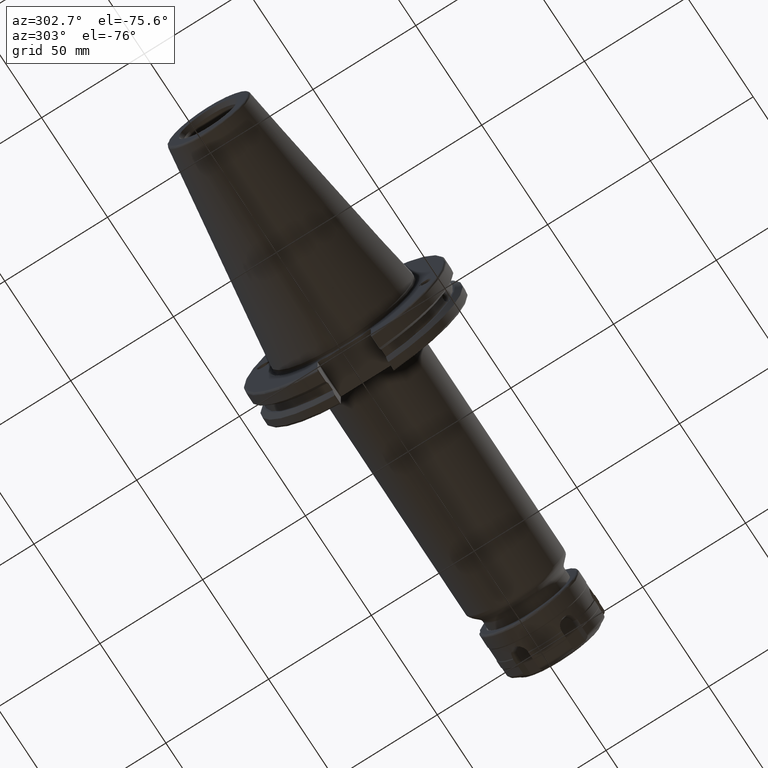
[diagram: clean part render]
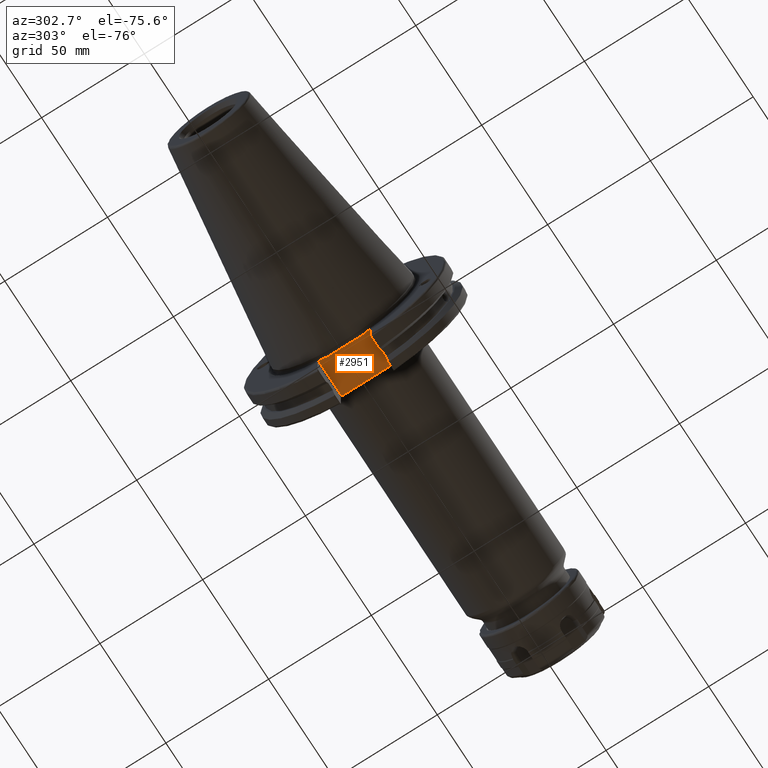
[diagram: same view with one face highlighted and labeled with its STEP entity id]
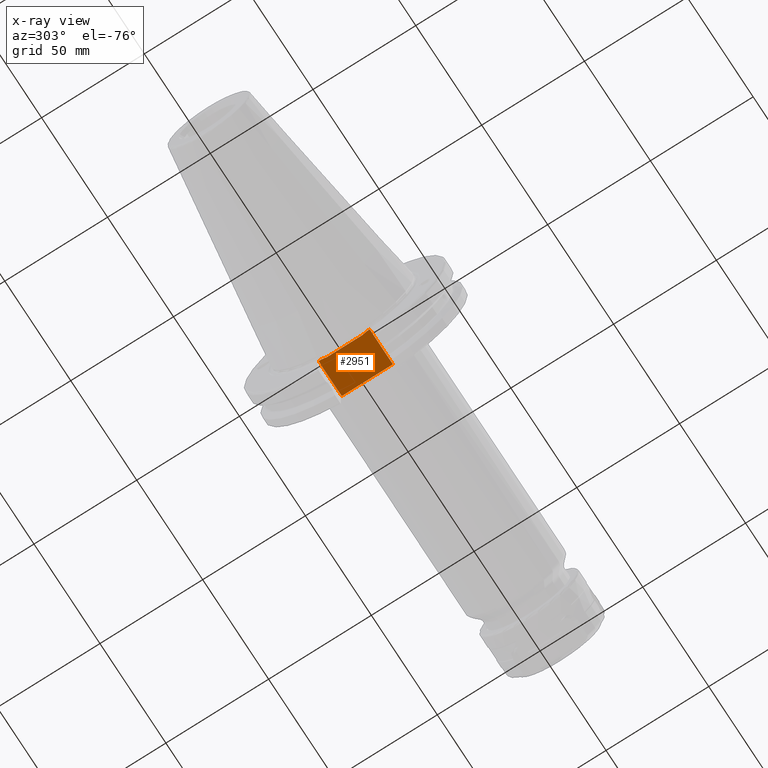
[diagram: x-ray of the same camera — body ghosted, the highlighted face saturated]
A machine part, auxiliary view. The second image highlights one B-rep face of the part: STEP entity #2951.
The next image is the same camera in x-ray: the body ghosted, the highlighted face saturated — about 0% of this face is hidden behind the body in this view.
In plain terms, the highlighted planar face has unit normal (0, 0, 1).
Its self-contained STEP definition (entity closure, byte-faithful):
#41=(
BOUNDED_CURVE()
B_SPLINE_CURVE(2,(#5212,#5213,#5214),.UNSPECIFIED.,.F.,.F.)
B_SPLINE_CURVE_WITH_KNOTS((3,3),(0.,0.263061266239573),.UNSPECIFIED.)
CURVE()
GEOMETRIC_REPRESENTATION_ITEM()
RATIONAL_B_SPLINE_CURVE((1.,1.00062951069793,1.))
REPRESENTATION_ITEM('')
);
#42=(
BOUNDED_CURVE()
B_SPLINE_CURVE(2,(#5217,#5218,#5219),.UNSPECIFIED.,.F.,.F.)
B_SPLINE_CURVE_WITH_KNOTS((3,3),(0.,0.263061266239573),.UNSPECIFIED.)
CURVE()
GEOMETRIC_REPRESENTATION_ITEM()
RATIONAL_B_SPLINE_CURVE((1.,1.00062951069793,1.))
REPRESENTATION_ITEM('')
);
#207=LINE('',#4408,#377);
#265=LINE('',#5184,#435);
#266=LINE('',#5188,#436);
#270=LINE('',#5208,#440);
#271=LINE('',#5210,#441);
#272=LINE('',#5216,#442);
#377=VECTOR('',#3562,10.);
#435=VECTOR('',#3786,10.);
#436=VECTOR('',#3789,10.);
#440=VECTOR('',#3815,10.);
#441=VECTOR('',#3818,10.);
#442=VECTOR('',#3819,10.);
#621=PLANE('',#3261);
#722=FACE_OUTER_BOUND('',#906,.T.);
#906=EDGE_LOOP('',(#2300,#2301,#2302,#2303,#2304,#2305,#2306,#2307));
#1221=VERTEX_POINT('',#4405);
#1222=VERTEX_POINT('',#4407);
#1330=VERTEX_POINT('',#5181);
#1331=VERTEX_POINT('',#5183);
#1332=VERTEX_POINT('',#5185);
#1333=VERTEX_POINT('',#5187);
#1339=VERTEX_POINT('',#5211);
#1340=VERTEX_POINT('',#5215);
#1535=EDGE_CURVE('',#1221,#1222,#207,.T.);
#1687=EDGE_CURVE('',#1330,#1331,#265,.T.);
#1689=EDGE_CURVE('',#1332,#1333,#266,.T.);
#1699=EDGE_CURVE('',#1222,#1330,#270,.T.);
#1700=EDGE_CURVE('',#1333,#1221,#271,.T.);
#1701=EDGE_CURVE('',#1339,#1332,#41,.T.);
#1702=EDGE_CURVE('',#1340,#1339,#272,.T.);
#1703=EDGE_CURVE('',#1331,#1340,#42,.T.);
#2300=ORIENTED_EDGE('',*,*,#1699,.F.);
#2301=ORIENTED_EDGE('',*,*,#1535,.F.);
#2302=ORIENTED_EDGE('',*,*,#1700,.F.);
#2303=ORIENTED_EDGE('',*,*,#1689,.F.);
#2304=ORIENTED_EDGE('',*,*,#1701,.F.);
#2305=ORIENTED_EDGE('',*,*,#1702,.F.);
#2306=ORIENTED_EDGE('',*,*,#1703,.F.);
#2307=ORIENTED_EDGE('',*,*,#1687,.F.);
#2951=ADVANCED_FACE('',(#722),#621,.F.);
#3261=AXIS2_PLACEMENT_3D('',#5209,#3816,#3817);
#3562=DIRECTION('',(0.,1.,0.));
#3786=DIRECTION('',(0.,-1.,0.));
#3789=DIRECTION('',(0.,-1.,0.));
#3815=DIRECTION('',(-1.,-1.19700595646917E-16,0.));
#3816=DIRECTION('center_axis',(0.,0.,1.));
#3817=DIRECTION('ref_axis',(1.,0.,0.));
#3818=DIRECTION('',(1.,2.39401191293834E-16,0.));
#3819=DIRECTION('',(0.,-1.,0.));
#4405=CARTESIAN_POINT('',(19.05,-12.45,-35.306));
#4407=CARTESIAN_POINT('',(19.05,12.45,-35.306));
#4408=CARTESIAN_POINT('',(19.05,-3.88578058618805E-15,-35.306));
#5181=CARTESIAN_POINT('',(1.5,12.45,-35.306));
#5183=CARTESIAN_POINT('',(1.49999999999999,11.0673557817575,-35.306));
#5184=CARTESIAN_POINT('',(1.5,24.60625,-35.306));
#5185=CARTESIAN_POINT('',(1.5,-11.0673557817575,-35.306));
#5187=CARTESIAN_POINT('',(1.5,-12.45,-35.306));
#5188=CARTESIAN_POINT('',(1.5,24.60625,-35.306));
#5208=CARTESIAN_POINT('',(9.37499999999999,12.45,-35.306));
#5209=CARTESIAN_POINT('Origin',(17.25,-7.7715611723761E-15,-35.306));
#5210=CARTESIAN_POINT('',(18.65,-12.45,-35.306));
#5211=CARTESIAN_POINT('',(1.9,-8.46744708256043,-35.306));
#5212=CARTESIAN_POINT('Ctrl Pts',(1.9,-8.46744708256047,-35.306));
#5213=CARTESIAN_POINT('Ctrl Pts',(1.72661822304788,-9.75511566702161,-35.306));
#5214=CARTESIAN_POINT('Ctrl Pts',(1.5,-11.0673557817575,-35.306));
#5215=CARTESIAN_POINT('',(1.9,8.46744708256043,-35.306));
#5216=CARTESIAN_POINT('',(1.9,18.1535898384862,-35.306));
#5217=CARTESIAN_POINT('Ctrl Pts',(1.5,11.0673557817575,-35.306));
#5218=CARTESIAN_POINT('Ctrl Pts',(1.72661822304788,9.75511566702161,-35.306));
#5219=CARTESIAN_POINT('Ctrl Pts',(1.9,8.46744708256047,-35.306));